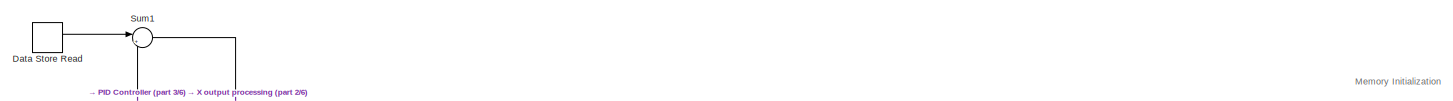
[diagram: root canvas - part 1/6, top center region]
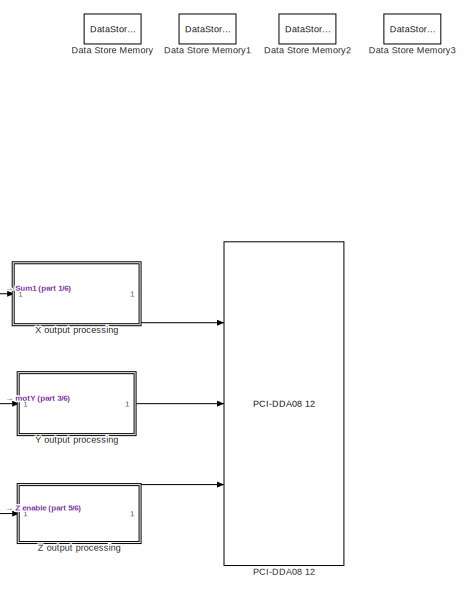
[diagram: root canvas - part 2/6, top right region]
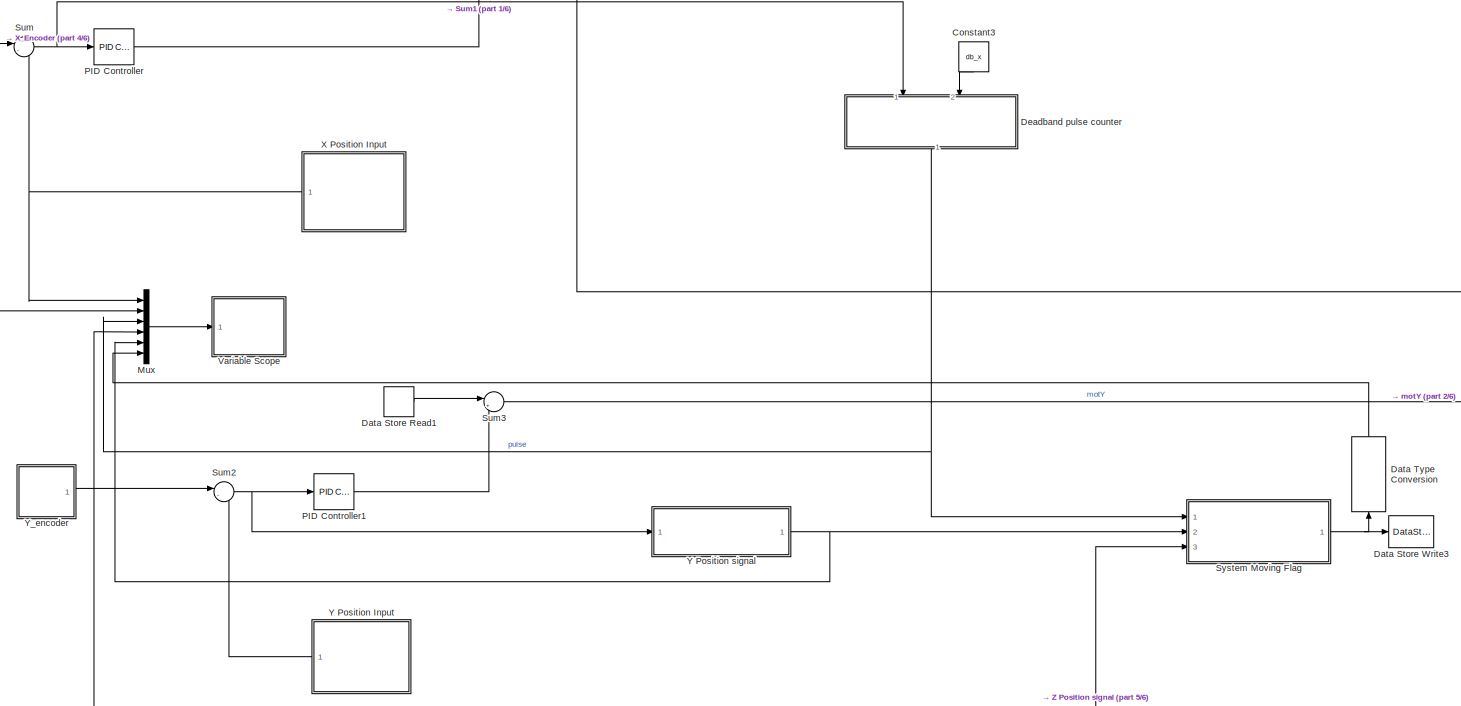
[diagram: root canvas - part 3/6, central region]
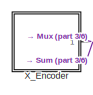
[diagram: root canvas - part 4/6, top left region]
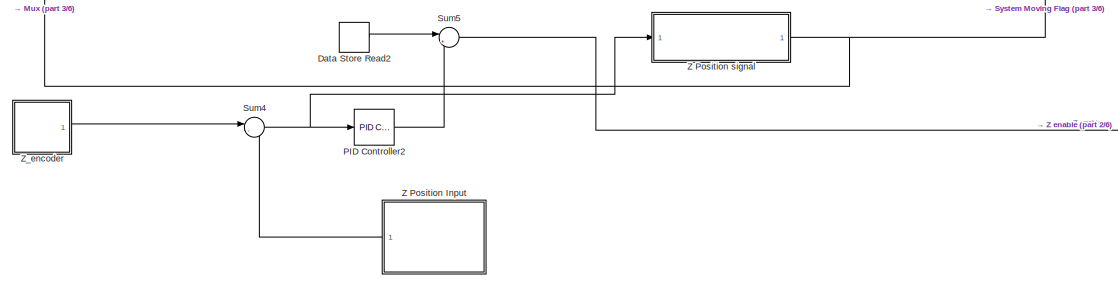
[diagram: root canvas - part 5/6, bottom center region]
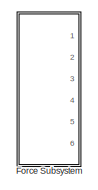
[diagram: root canvas - part 6/6, bottom center region]
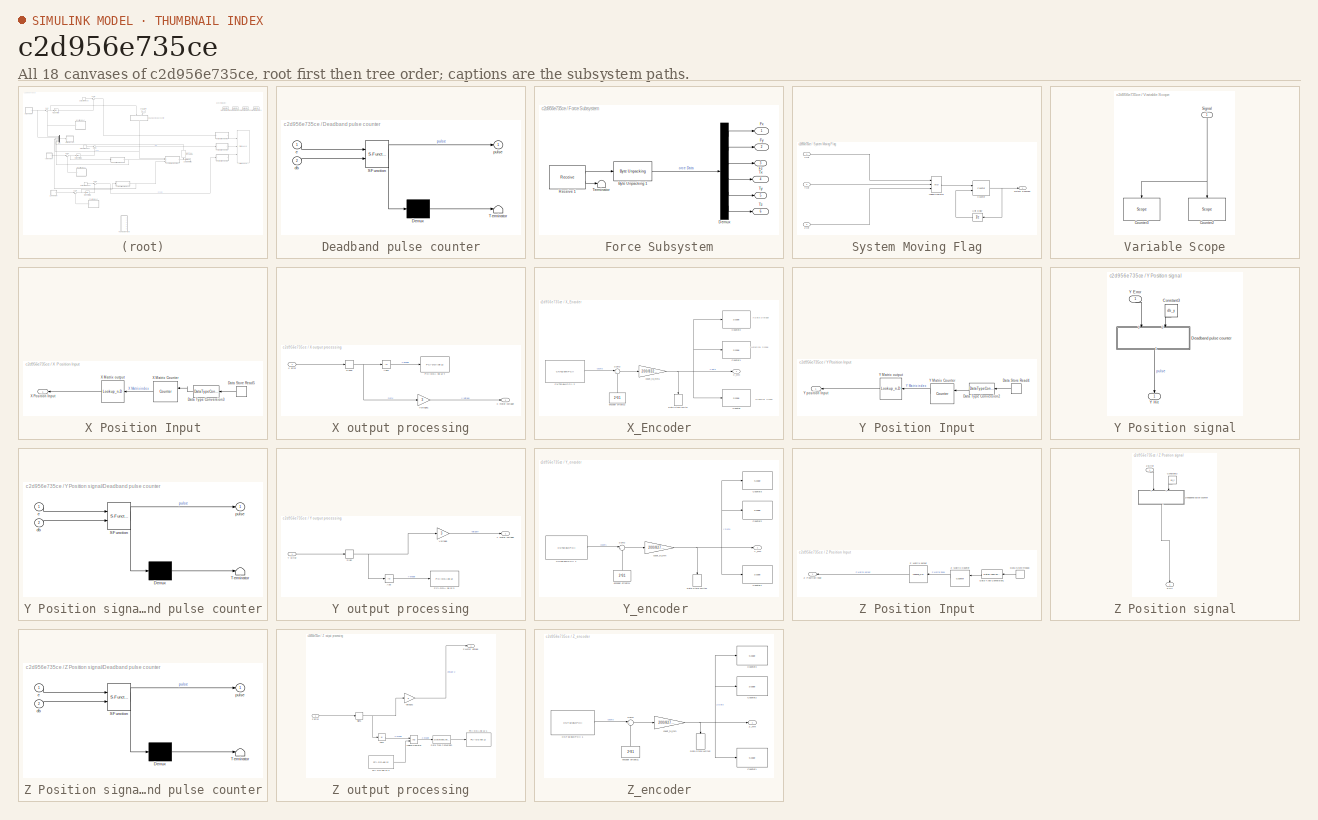
[diagram: thumbnail index - all 18 canvases of the model, root first then tree order]
MODEL slx_c2d956e735ce
KIND model
CONFIG AbsTol = auto
CONFIG FixedStep = ts
CONFIG MaxStep = auto
CONFIG MinStep = auto
CONFIG RelTol = 1e-3
CONFIG SampleTimeConstraint = Unconstrained
CONFIG Solver = ode4
CONFIG SolverMode = Auto
CONFIG SolverName = ode4
CONFIG StartTime = 0.0
CONFIG StopTime = inf
BLOCK [Constant] Constant3
  SampleTime = ts
  Value = db_x
BLOCK [DataStoreMemory] Data Store Memory
  DataStoreName = Xmem
  ReadBeforeWriteMsg = warning
  ShowAdditionalParam = off
  WriteAfterReadMsg = warning
  WriteAfterWriteMsg = warning
BLOCK [DataStoreMemory] Data Store Memory1
  DataStoreName = Ymem
  ReadBeforeWriteMsg = warning
  ShowAdditionalParam = off
  WriteAfterReadMsg = warning
  WriteAfterWriteMsg = warning
BLOCK [DataStoreMemory] Data Store Memory2
  DataStoreName = Zmem
  ReadBeforeWriteMsg = warning
  ShowAdditionalParam = off
  WriteAfterReadMsg = warning
  WriteAfterWriteMsg = warning
BLOCK [DataStoreMemory] Data Store Memory3
  DataStoreName = RFlag
  ReadBeforeWriteMsg = warning
  ShowAdditionalParam = off
  WriteAfterReadMsg = warning
  WriteAfterWriteMsg = warning
BLOCK [DataStoreRead] Data Store Read
  DataStoreName = Xmem
  Ports = [0, 1]
BLOCK [DataStoreRead] Data Store Read1
  DataStoreName = Ymem
  Ports = [0, 1]
BLOCK [DataStoreRead] Data Store Read2
  DataStoreName = Zmem
  Ports = [0, 1]
BLOCK [DataStoreWrite] Data Store Write3
  DataStoreName = RFlag
  Ports = [1]
BLOCK [DataTypeConversion] Data Type Conversion
  RndMeth = Floor
  SaturateOnIntegerOverflow = off
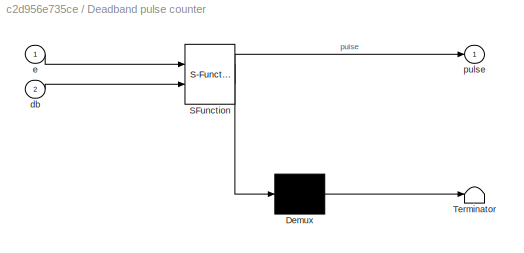
BLOCK [SubSystem] Deadband pulse counter
  ErrorFcn = Stateflow.Translate.translate
  PermitHierarchicalResolution = ExplicitOnly
  Ports = [2, 1]
  RequestExecContextInheritance = off
  SFBlockType = MATLAB Function
  TreatAsAtomicUnit = on
  Variant = off
BLOCK [Demux] Deadband pulse counter/ Demux 
  Outputs = 1
  Ports = [1, 1]
BLOCK [S-Function] Deadband pulse counter/ SFunction 
  EnableBusSupport = on
  FunctionName = sf_sfun
  PortCounts = [2 2]
  Ports = [2, 2]
  SFunctionDeploymentMode = off
  Tag = Stateflow S-Function Pos_PID 3
BLOCK [Terminator] Deadband pulse counter/ Terminator 
BLOCK [Inport] Deadband pulse counter/db
  IconDisplay = Port number
  Port = 2
BLOCK [Inport] Deadband pulse counter/e
  IconDisplay = Port number
BLOCK [Outport] Deadband pulse counter/pulse
  IconDisplay = Port number
BLOCK [SubSystem] Force Subsystem
  Ports = [0, 6]
  RequestExecContextInheritance = off
  Variant = off
BLOCK [Reference] Force Subsystem/Byte Unpacking 1  REF=xpcutilitieslib/Byte Unpacking 
  Ports = [1, 1]
  SourceBlock = xpcutilitieslib/Byte Unpacking
  SourceType = xpcbytepacking
BLOCK [Demux] Force Subsystem/Demux
  DisplayOption = bar
  Outputs = 6
  Ports = [1, 6]
BLOCK [Outport] Force Subsystem/Fx
  IconDisplay = Port number
BLOCK [Outport] Force Subsystem/Fy
  IconDisplay = Port number
  Port = 2
BLOCK [Outport] Force Subsystem/Fz
  IconDisplay = Port number
  Port = 3
BLOCK [Reference] Force Subsystem/Receive 1  REF=xpcrtudplib/Legacy UDP/Receive 
  Ports = [0, 2]
  SourceBlock = xpcrtudplib/Legacy UDP/Receive
  SourceType = xpcudpbytereceive
BLOCK [Terminator] Force Subsystem/Terminator
BLOCK [Outport] Force Subsystem/Tx
  IconDisplay = Port number
  Port = 4
BLOCK [Outport] Force Subsystem/Ty
  IconDisplay = Port number
  Port = 5
BLOCK [Outport] Force Subsystem/Tz
  IconDisplay = Port number
  Port = 6
BLOCK [Mux] Mux
  DisplayOption = bar
  Inputs = 6
  Ports = [6, 1]
BLOCK [Reference] PCI-DDA08 12   REF=xpcmeasurementcomputinglib/D//A/PCI-DDA08 12 
  Ports = [3]
  SourceBlock = xpcmeasurementcomputinglib/D//A/PCI-DDA08 12
  SourceType = dacbpcidda0812
BLOCK [Reference] PID Controller  REF=simulink/Continuous/PID Controller
  Ports = [1, 1]
  SourceBlock = simulink/Continuous/PID Controller
  SourceType = PID 1dof
BLOCK [Reference] PID Controller1  REF=simulink/Continuous/PID Controller
  Ports = [1, 1]
  SourceBlock = simulink/Continuous/PID Controller
  SourceType = PID 1dof
BLOCK [Reference] PID Controller2  REF=simulink/Continuous/PID Controller
  Ports = [1, 1]
  SourceBlock = simulink/Continuous/PID Controller
  SourceType = PID 1dof
BLOCK [Sum] Sum
  IconShape = round
  InputSameDT = off
  Inputs = |-+
  OutDataTypeStr = Inherit: Inherit via internal rule
  Ports = [2, 1]
  SaturateOnIntegerOverflow = off
BLOCK [Sum] Sum1
  IconShape = round
  InputSameDT = off
  Inputs = |+-
  OutDataTypeStr = Inherit: Inherit via internal rule
  Ports = [2, 1]
  SaturateOnIntegerOverflow = off
BLOCK [Sum] Sum2
  IconShape = round
  InputSameDT = off
  Inputs = |-+
  OutDataTypeStr = Inherit: Inherit via internal rule
  Ports = [2, 1]
  SaturateOnIntegerOverflow = off
BLOCK [Sum] Sum3
  IconShape = round
  InputSameDT = off
  Inputs = |+-
  OutDataTypeStr = Inherit: Inherit via internal rule
  Ports = [2, 1]
  SaturateOnIntegerOverflow = off
BLOCK [Sum] Sum4
  IconShape = round
  InputSameDT = off
  Inputs = |-+
  OutDataTypeStr = Inherit: Inherit via internal rule
  Ports = [2, 1]
  SaturateOnIntegerOverflow = off
BLOCK [Sum] Sum5
  IconShape = round
  InputSameDT = off
  Inputs = |+-
  OutDataTypeStr = Inherit: Inherit via internal rule
  Ports = [2, 1]
  SaturateOnIntegerOverflow = off
BLOCK [SubSystem] System Moving Flag
  Ports = [3, 1]
  RequestExecContextInheritance = off
  Variant = off
BLOCK [Reference] System Moving Flag/Counter  REF=dspswit3/Counter
  Ports = [2, 1]
  SourceBlock = dspswit3/Counter
  SourceType = Counter
BLOCK [Logic] System Moving Flag/Logical Operator
  AllPortsSameDT = off
  Inputs = 3
  OutDataTypeStr = boolean
  Ports = [3, 1]
BLOCK [Outport] System Moving Flag/System Reached
  IconDisplay = Port number
BLOCK [UnitDelay] System Moving Flag/Unit Delay
  InputProcessing = Elements as channels (sample based)
  SampleTime = ts
BLOCK [Inport] System Moving Flag/X Hit 
  IconDisplay = Port number
BLOCK [Inport] System Moving Flag/Y Hit
  IconDisplay = Port number
  Port = 2
BLOCK [Inport] System Moving Flag/Z Hit
  IconDisplay = Port number
  Port = 3
BLOCK [SubSystem] Variable Scope
  Ports = [1]
  RequestExecContextInheritance = off
  Variant = off
BLOCK [Reference] Variable Scope/Counter2  REF=slrtlib/Displays and
Logging/Scope 
  Ports = [1]
  SourceBlock = slrtlib/Displays and\nLogging/Scope
  SourceType = xpcscopeblock
BLOCK [Reference] Variable Scope/Counter3  REF=slrtlib/Displays and
Logging/Scope 
  Ports = [1]
  SourceBlock = slrtlib/Displays and\nLogging/Scope
  SourceType = xpcscopeblock
BLOCK [Inport] Variable Scope/Signal
  IconDisplay = Port number
BLOCK [SubSystem] X Position Input
  Ports = [0, 1]
  RequestExecContextInheritance = off
  Variant = off
BLOCK [DataStoreRead] X Position Input/Data Store Read5
  DataStoreName = RFlag
  Ports = [0, 1]
BLOCK [DataTypeConversion] X Position Input/Data Type Conversion3
  RndMeth = Floor
  SaturateOnIntegerOverflow = off
BLOCK [Reference] X Position Input/X Matrix Counter  REF=dspswit3/Counter
  Ports = [2, 1]
  SourceBlock = dspswit3/Counter
  SourceType = Counter
BLOCK [Lookup_n-D] X Position Input/X Matrix output
  BreakpointsForDimension1 = [0:20]
  BreakpointsForDimension1FirstPoint = 0
  BreakpointsSpecification = Even spacing
  ExtrapMethod = Clip
  InternalRulePriority = Speed
  InterpMethod = Flat
  NumberOfTableDimensions = 1
  Ports = [1, 1]
  RndMeth = Simplest
  Table = xpos
  UseLastTableValue = on
BLOCK [Outport] X Position Input/X Position Input
  IconDisplay = Port number
BLOCK [SubSystem] X output processing
  Ports = [1, 1]
  RequestExecContextInheritance = off
  Variant = off
BLOCK [Abs] X output processing/Abs1
  SaturateOnIntegerOverflow = off
BLOCK [Reference] X output processing/PCI-DDA 08 12 4  REF=xpcmeasurementcomputinglib/Digital
Output/PCI-DDA08 12 
  Ports = [1]
  SourceBlock = xpcmeasurementcomputinglib/Digital\nOutput/PCI-DDA08 12
  SourceType = docbpcidda0812
BLOCK [Signum] X output processing/Sign2
BLOCK [Gain] X output processing/Voltage1
  Gain = 3
  OutDataTypeStr = Inherit: Inherit via internal rule
  ParamDataTypeStr = Inherit: Inherit via internal rule
  SaturateOnIntegerOverflow = off
BLOCK [Inport] X output processing/X error
  IconDisplay = Port number
BLOCK [Outport] X output processing/X motor voltage
  IconDisplay = Port number
BLOCK [SubSystem] X_Encoder
  Ports = [0, 1]
  RequestExecContextInheritance = off
  Variant = off
BLOCK [Reference] X_Encoder/CNT32-8M(PCI) 2  REF=xpcconteclib/Incremental
Encoder/CNT32-8M(PCI) 
  Ports = [0, 1]
  SourceBlock = xpcconteclib/Incremental\nEncoder/CNT32-8M(PCI)
  SourceType = encconteccnt328mpci
BLOCK [Reference] X_Encoder/Counter  REF=slrtlib/Displays and
Logging/Scope 
  Ports = [1]
  SourceBlock = slrtlib/Displays and\nLogging/Scope
  SourceType = xpcscopeblock
BLOCK [Reference] X_Encoder/Counter1  REF=slrtlib/Displays and
Logging/Scope 
  Commented = on
  Ports = [1]
  SourceBlock = slrtlib/Displays and\nLogging/Scope
  SourceType = xpcscopeblock
BLOCK [Reference] X_Encoder/Counter2  REF=slrtlib/Displays and
Logging/Scope 
  Ports = [1]
  SourceBlock = slrtlib/Displays and\nLogging/Scope
  SourceType = xpcscopeblock
BLOCK [DataStoreWrite] X_Encoder/Data Store Write
  DataStoreName = Xmem
  Ports = [1]
BLOCK [Sum] X_Encoder/Sum3
  IconShape = round
  InputSameDT = off
  Inputs = |+-
  OutDataTypeStr = Inherit: Inherit via internal rule
  Ports = [2, 1]
  SaturateOnIntegerOverflow = off
BLOCK [Outport] X_Encoder/X_mm 
  IconDisplay = Port number
BLOCK [Gain] X_Encoder/count_to_mm1
  Gain = 200/83289
  OutDataTypeStr = Inherit: Inherit via internal rule
  ParamDataTypeStr = Inherit: Inherit via internal rule
  SaturateOnIntegerOverflow = off
BLOCK [Constant] X_Encoder/encoder offsets2
  Value = 2^31
BLOCK [SubSystem] Y Position Input
  Ports = [0, 1]
  RequestExecContextInheritance = off
  Variant = off
BLOCK [DataStoreRead] Y Position Input/Data Store Read4
  DataStoreName = RFlag
  Ports = [0, 1]
BLOCK [DataTypeConversion] Y Position Input/Data Type Conversion2
  RndMeth = Floor
  SaturateOnIntegerOverflow = off
BLOCK [Reference] Y Position Input/Y Matrix Counter  REF=dspswit3/Counter
  Ports = [2, 1]
  SourceBlock = dspswit3/Counter
  SourceType = Counter
BLOCK [Lookup_n-D] Y Position Input/Y Matrix output
  BreakpointsForDimension1 = [0:20]
  BreakpointsForDimension1FirstPoint = 0
  BreakpointsSpecification = Even spacing
  ExtrapMethod = Clip
  InternalRulePriority = Speed
  InterpMethod = Flat
  NumberOfTableDimensions = 1
  Ports = [1, 1]
  RndMeth = Simplest
  Table = ypos
  UseLastTableValue = on
BLOCK [Outport] Y Position Input/Y position Input
  IconDisplay = Port number
BLOCK [SubSystem] Y Position signal
  Ports = [1, 1]
  RequestExecContextInheritance = off
  Variant = off
BLOCK [Constant] Y Position signal/Constant3
  SampleTime = ts
  Value = db_y
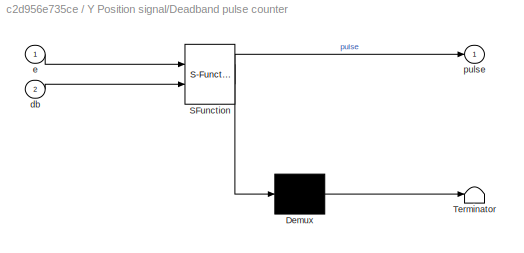
BLOCK [SubSystem] Y Position signal/Deadband pulse counter
  ErrorFcn = Stateflow.Translate.translate
  PermitHierarchicalResolution = ExplicitOnly
  Ports = [2, 1]
  RequestExecContextInheritance = off
  SFBlockType = MATLAB Function
  TreatAsAtomicUnit = on
  Variant = off
BLOCK [Demux] Y Position signal/Deadband pulse counter/ Demux 
  Outputs = 1
  Ports = [1, 1]
BLOCK [S-Function] Y Position signal/Deadband pulse counter/ SFunction 
  EnableBusSupport = on
  FunctionName = sf_sfun
  PortCounts = [2 2]
  Ports = [2, 2]
  SFunctionDeploymentMode = off
  Tag = Stateflow S-Function Pos_PID 1
BLOCK [Terminator] Y Position signal/Deadband pulse counter/ Terminator 
BLOCK [Inport] Y Position signal/Deadband pulse counter/db
  IconDisplay = Port number
  Port = 2
BLOCK [Inport] Y Position signal/Deadband pulse counter/e
  IconDisplay = Port number
BLOCK [Outport] Y Position signal/Deadband pulse counter/pulse
  IconDisplay = Port number
BLOCK [Inport] Y Position signal/Y Error
  IconDisplay = Port number
BLOCK [Outport] Y Position signal/Y Hit
  IconDisplay = Port number
BLOCK [SubSystem] Y output processing
  Ports = [1, 1]
  RequestExecContextInheritance = off
  Variant = off
BLOCK [Abs] Y output processing/Abs
  SaturateOnIntegerOverflow = off
BLOCK [Reference] Y output processing/PCI-DDA 08 12 3  REF=xpcmeasurementcomputinglib/Digital
Output/PCI-DDA08 12 
  Ports = [1]
  SourceBlock = xpcmeasurementcomputinglib/Digital\nOutput/PCI-DDA08 12
  SourceType = docbpcidda0812
BLOCK [Signum] Y output processing/Sign
BLOCK [Gain] Y output processing/Voltage
  Gain = 3
  OutDataTypeStr = Inherit: Inherit via internal rule
  ParamDataTypeStr = Inherit: Inherit via internal rule
  SaturateOnIntegerOverflow = off
BLOCK [Inport] Y output processing/Y Error
  IconDisplay = Port number
BLOCK [Outport] Y output processing/Y motor voltage
  IconDisplay = Port number
BLOCK [SubSystem] Y_encoder 
  Ports = [0, 1]
  RequestExecContextInheritance = off
  Variant = off
BLOCK [Reference] Y_encoder /CNT32-8M(PCI) 1  REF=xpcconteclib/Incremental
Encoder/CNT32-8M(PCI) 
  Ports = [0, 1]
  SourceBlock = xpcconteclib/Incremental\nEncoder/CNT32-8M(PCI)
  SourceType = encconteccnt328mpci
BLOCK [Reference] Y_encoder /Counter1  REF=slrtlib/Displays and
Logging/Scope 
  Ports = [1]
  SourceBlock = slrtlib/Displays and\nLogging/Scope
  SourceType = xpcscopeblock
BLOCK [Reference] Y_encoder /Counter2  REF=slrtlib/Displays and
Logging/Scope 
  Commented = on
  Ports = [1]
  SourceBlock = slrtlib/Displays and\nLogging/Scope
  SourceType = xpcscopeblock
BLOCK [Reference] Y_encoder /Counter3  REF=slrtlib/Displays and
Logging/Scope 
  Ports = [1]
  SourceBlock = slrtlib/Displays and\nLogging/Scope
  SourceType = xpcscopeblock
BLOCK [DataStoreWrite] Y_encoder /Data Store Write1
  DataStoreName = Ymem
  Ports = [1]
BLOCK [Sum] Y_encoder /Sum2
  IconShape = round
  InputSameDT = off
  Inputs = |+-
  OutDataTypeStr = Inherit: Inherit via internal rule
  Ports = [2, 1]
  SaturateOnIntegerOverflow = off
BLOCK [Outport] Y_encoder /Y_mm
  IconDisplay = Port number
BLOCK [Gain] Y_encoder /count_to_mm
  Gain = 200/82720
  OutDataTypeStr = Inherit: Inherit via internal rule
  ParamDataTypeStr = Inherit: Inherit via internal rule
  SaturateOnIntegerOverflow = off
BLOCK [Constant] Y_encoder /encoder offsets1
  Value = 2^31
BLOCK [SubSystem] Z Position Input
  Ports = [0, 1]
  RequestExecContextInheritance = off
  Variant = off
BLOCK [DataStoreRead] Z Position Input/Data Store Read3
  DataStoreName = RFlag
  Ports = [0, 1]
BLOCK [DataTypeConversion] Z Position Input/Data Type Conversion1
  RndMeth = Floor
  SaturateOnIntegerOverflow = off
BLOCK [Reference] Z Position Input/Z Matrix Counter  REF=dspswit3/Counter
  Ports = [2, 1]
  SourceBlock = dspswit3/Counter
  SourceType = Counter
BLOCK [Lookup_n-D] Z Position Input/Z Matrix output
  BreakpointsForDimension1 = [0:20]
  BreakpointsForDimension1FirstPoint = 0
  BreakpointsSpecification = Even spacing
  ExtrapMethod = Clip
  InternalRulePriority = Speed
  InterpMethod = Flat
  NumberOfTableDimensions = 1
  Ports = [1, 1]
  RndMeth = Simplest
  Table = zpos
  UseLastTableValue = on
BLOCK [Outport] Z Position Input/Z Position input
  IconDisplay = Port number
BLOCK [SubSystem] Z Position signal
  Ports = [1, 1]
  RequestExecContextInheritance = off
  Variant = off
BLOCK [Constant] Z Position signal/Constant3
  SampleTime = ts
  Value = db_z
BLOCK [SubSystem] Z Position signal/Deadband pulse counter
  ErrorFcn = Stateflow.Translate.translate
  PermitHierarchicalResolution = ExplicitOnly
  Ports = [2, 1]
  RequestExecContextInheritance = off
  SFBlockType = MATLAB Function
  TreatAsAtomicUnit = on
  Variant = off
BLOCK [Demux] Z Position signal/Deadband pulse counter/ Demux 
  Outputs = 1
  Ports = [1, 1]
BLOCK [S-Function] Z Position signal/Deadband pulse counter/ SFunction 
  EnableBusSupport = on
  FunctionName = sf_sfun
  PortCounts = [2 2]
  Ports = [2, 2]
  SFunctionDeploymentMode = off
  Tag = Stateflow S-Function Pos_PID 2
BLOCK [Terminator] Z Position signal/Deadband pulse counter/ Terminator 
BLOCK [Inport] Z Position signal/Deadband pulse counter/db
  IconDisplay = Port number
  Port = 2
BLOCK [Inport] Z Position signal/Deadband pulse counter/e
  IconDisplay = Port number
BLOCK [Outport] Z Position signal/Deadband pulse counter/pulse
  IconDisplay = Port number
BLOCK [Inport] Z Position signal/Z Error
  IconDisplay = Port number
BLOCK [Outport] Z Position signal/Z Hit
  IconDisplay = Port number
BLOCK [SubSystem] Z output processing
  Ports = [1, 1]
  RequestExecContextInheritance = off
  Variant = off
BLOCK [Abs] Z output processing/Abs2
  SaturateOnIntegerOverflow = off
BLOCK [DataTypeConversion] Z output processing/Data Type Conversion
  OutDataTypeStr = double
  RndMeth = Floor
  SaturateOnIntegerOverflow = off
BLOCK [Logic] Z output processing/Logical Operator
  AllPortsSameDT = off
  OutDataTypeStr = boolean
  Ports = [2, 1]
BLOCK [Reference] Z output processing/PCI-DDA 08 12 1  REF=xpcmeasurementcomputinglib/Digital
Output/PCI-DDA08 12 
  Ports = [1]
  SourceBlock = xpcmeasurementcomputinglib/Digital\nOutput/PCI-DDA08 12
  SourceType = docbpcidda0812
BLOCK [Reference] Z output processing/PCI-DDA08 12 3  REF=xpcmeasurementcomputinglib/Digital
Input/PCI-DDA08 12 
  Ports = [0, 1]
  SourceBlock = xpcmeasurementcomputinglib/Digital\nInput/PCI-DDA08 12
  SourceType = dicbpcidda0812
BLOCK [Signum] Z output processing/Sign1
BLOCK [Gain] Z output processing/Voltage2
  Gain = 3
  OutDataTypeStr = Inherit: Inherit via internal rule
  ParamDataTypeStr = Inherit: Inherit via internal rule
  SaturateOnIntegerOverflow = off
BLOCK [Inport] Z output processing/Z Error
  IconDisplay = Port number
BLOCK [Outport] Z output processing/Z Motor Voltage
  IconDisplay = Port number
BLOCK [SubSystem] Z_encoder
  Ports = [0, 1]
  RequestExecContextInheritance = off
  Variant = off
BLOCK [Reference] Z_encoder/CNT32-8M(PCI) 1  REF=xpcconteclib/Incremental
Encoder/CNT32-8M(PCI) 
  Ports = [0, 1]
  SourceBlock = xpcconteclib/Incremental\nEncoder/CNT32-8M(PCI)
  SourceType = encconteccnt328mpci
BLOCK [Reference] Z_encoder/Counter1  REF=slrtlib/Displays and
Logging/Scope 
  Ports = [1]
  SourceBlock = slrtlib/Displays and\nLogging/Scope
  SourceType = xpcscopeblock
BLOCK [Reference] Z_encoder/Counter2  REF=slrtlib/Displays and
Logging/Scope 
  Commented = on
  Ports = [1]
  SourceBlock = slrtlib/Displays and\nLogging/Scope
  SourceType = xpcscopeblock
BLOCK [Reference] Z_encoder/Counter3  REF=slrtlib/Displays and
Logging/Scope 
  Ports = [1]
  SourceBlock = slrtlib/Displays and\nLogging/Scope
  SourceType = xpcscopeblock
BLOCK [DataStoreWrite] Z_encoder/Data Store Write2
  DataStoreName = Zmem
  Ports = [1]
BLOCK [Sum] Z_encoder/Sum2
  IconShape = round
  InputSameDT = off
  Inputs = |+-
  OutDataTypeStr = Inherit: Inherit via internal rule
  Ports = [2, 1]
  SaturateOnIntegerOverflow = off
BLOCK [Outport] Z_encoder/Z_mm
  IconDisplay = Port number
BLOCK [Gain] Z_encoder/count_to_mm
  Gain = 200/82720
  OutDataTypeStr = Inherit: Inherit via internal rule
  ParamDataTypeStr = Inherit: Inherit via internal rule
  SaturateOnIntegerOverflow = off
BLOCK [Constant] Z_encoder/encoder offsets1
  Value = 2^31
ANNOTATION (root): Memory Initialization
ANNOTATION X_Encoder: Graphical Scope
ANNOTATION X_Encoder: Numerical Scope
ANNOTATION X_Encoder: XData Storage
LINE Constant3:1 -> Deadband pulse counter:2
LINE Data Store Read1:1 -> Sum3:1
LINE Data Store Read2:1 -> Sum5:1
LINE Data Store Read:1 -> Sum1:1
LINE Data Type Conversion:1 -> Mux:6
NET Deadband pulse counter:1 -> Mux:3, System Moving Flag:1
LINE Force Subsystem/Byte Unpacking 1:1 -> Force Subsystem/Demux:1
LINE Force Subsystem/Demux:1 -> Force Subsystem/Fx:1
LINE Force Subsystem/Demux:2 -> Force Subsystem/Fy:1
LINE Force Subsystem/Demux:3 -> Force Subsystem/Fz:1
LINE Force Subsystem/Demux:4 -> Force Subsystem/Tx:1
LINE Force Subsystem/Demux:5 -> Force Subsystem/Ty:1
LINE Force Subsystem/Demux:6 -> Force Subsystem/Tz:1
LINE Force Subsystem/Receive 1:1 -> Force Subsystem/Byte Unpacking 1:1
LINE Force Subsystem/Receive 1:2 -> Force Subsystem/Terminator:1
LINE Mux:1 -> Variable Scope:1
LINE PID Controller1:1 -> Sum3:2
LINE PID Controller2:1 -> Sum5:2
LINE PID Controller:1 -> Sum1:2
LINE Sum1:1 -> X output processing:1
NET Sum2:1 -> PID Controller1:1, Y Position signal:1
LINE Sum3:1 -> Y output processing:1
NET Sum4:1 -> PID Controller2:1, Z Position signal:1
LINE Sum5:1 -> Z output processing:1
NET Sum:1 -> Deadband pulse counter:1, PID Controller:1
NET System Moving Flag/Counter:1 -> System Moving Flag/System Reached:1, System Moving Flag/Unit Delay:1
LINE System Moving Flag/Logical Operator:1 -> System Moving Flag/Counter:1
LINE System Moving Flag/Unit Delay:1 -> System Moving Flag/Counter:2
LINE System Moving Flag/X Hit :1 -> System Moving Flag/Logical Operator:1
LINE System Moving Flag/Y Hit:1 -> System Moving Flag/Logical Operator:2
LINE System Moving Flag/Z Hit:1 -> System Moving Flag/Logical Operator:3
NET System Moving Flag:1 -> Data Store Write3:1, Data Type Conversion:1
NET Variable Scope/Signal:1 -> Variable Scope/Counter2:1, Variable Scope/Counter3:1
LINE X Position Input/Data Store Read5:1 -> X Position Input/Data Type Conversion3:1
LINE X Position Input/Data Type Conversion3:1 -> X Position Input/X Matrix Counter:1
LINE X Position Input/X Matrix Counter:1 -> X Position Input/X Matrix output:1
LINE X Position Input/X Matrix output:1 -> X Position Input/X Position Input:1
NET X Position Input:1 -> Mux:1, Sum:2
LINE X output processing/Abs1:1 -> X output processing/PCI-DDA 08 12 4:1
NET X output processing/Sign2:1 -> X output processing/Abs1:1, X output processing/Voltage1:1
LINE X output processing/Voltage1:1 -> X output processing/X motor voltage:1
LINE X output processing/X error:1 -> X output processing/Sign2:1
LINE X output processing:1 -> PCI-DDA08 12 :1
LINE X_Encoder/CNT32-8M(PCI) 2:1 -> X_Encoder/Sum3:1
LINE X_Encoder/Sum3:1 -> X_Encoder/count_to_mm1:1
NET X_Encoder/count_to_mm1:1 -> X_Encoder/Counter1:1, X_Encoder/Counter2:1, X_Encoder/Counter:1, X_Encoder/Data Store Write:1, X_Encoder/X_mm :1
LINE X_Encoder/encoder offsets2:1 -> X_Encoder/Sum3:2
NET X_Encoder:1 -> Mux:2, Sum:1
LINE Y Position Input/Data Store Read4:1 -> Y Position Input/Data Type Conversion2:1
LINE Y Position Input/Data Type Conversion2:1 -> Y Position Input/Y Matrix Counter:1
LINE Y Position Input/Y Matrix Counter:1 -> Y Position Input/Y Matrix output:1
LINE Y Position Input/Y Matrix output:1 -> Y Position Input/Y position Input:1
LINE Y Position Input:1 -> Sum2:2
LINE Y Position signal/Constant3:1 -> Y Position signal/Deadband pulse counter:2
LINE Y Position signal/Deadband pulse counter:1 -> Y Position signal/Y Hit:1
LINE Y Position signal/Y Error:1 -> Y Position signal/Deadband pulse counter:1
NET Y Position signal:1 -> Mux:5, System Moving Flag:2
LINE Y output processing/Abs:1 -> Y output processing/PCI-DDA 08 12 3:1
NET Y output processing/Sign:1 -> Y output processing/Abs:1, Y output processing/Voltage:1
LINE Y output processing/Voltage:1 -> Y output processing/Y motor voltage:1
LINE Y output processing/Y Error:1 -> Y output processing/Sign:1
LINE Y output processing:1 -> PCI-DDA08 12 :2
LINE Y_encoder /CNT32-8M(PCI) 1:1 -> Y_encoder /Sum2:1
LINE Y_encoder /Sum2:1 -> Y_encoder /count_to_mm:1
NET Y_encoder /count_to_mm:1 -> Y_encoder /Counter1:1, Y_encoder /Counter2:1, Y_encoder /Counter3:1, Y_encoder /Data Store Write1:1, Y_encoder /Y_mm:1
LINE Y_encoder /encoder offsets1:1 -> Y_encoder /Sum2:2
LINE Y_encoder :1 -> Sum2:1
LINE Z Position Input/Data Store Read3:1 -> Z Position Input/Data Type Conversion1:1
LINE Z Position Input/Data Type Conversion1:1 -> Z Position Input/Z Matrix Counter:1
LINE Z Position Input/Z Matrix Counter:1 -> Z Position Input/Z Matrix output:1
LINE Z Position Input/Z Matrix output:1 -> Z Position Input/Z Position input:1
LINE Z Position Input:1 -> Sum4:2
LINE Z Position signal/Constant3:1 -> Z Position signal/Deadband pulse counter:2
LINE Z Position signal/Deadband pulse counter:1 -> Z Position signal/Z Hit:1
LINE Z Position signal/Z Error:1 -> Z Position signal/Deadband pulse counter:1
NET Z Position signal:1 -> Mux:4, System Moving Flag:3
LINE Z output processing/Abs2:1 -> Z output processing/Logical Operator:1
LINE Z output processing/Data Type Conversion:1 -> Z output processing/PCI-DDA 08 12 1:1
LINE Z output processing/Logical Operator:1 -> Z output processing/Data Type Conversion:1
LINE Z output processing/PCI-DDA08 12 3:1 -> Z output processing/Logical Operator:2
NET Z output processing/Sign1:1 -> Z output processing/Abs2:1, Z output processing/Voltage2:1
LINE Z output processing/Voltage2:1 -> Z output processing/Z Motor Voltage:1
LINE Z output processing/Z Error:1 -> Z output processing/Sign1:1
LINE Z output processing:1 -> PCI-DDA08 12 :3
LINE Z_encoder/CNT32-8M(PCI) 1:1 -> Z_encoder/Sum2:1
LINE Z_encoder/Sum2:1 -> Z_encoder/count_to_mm:1
NET Z_encoder/count_to_mm:1 -> Z_encoder/Counter1:1, Z_encoder/Counter2:1, Z_encoder/Counter3:1, Z_encoder/Data Store Write2:1, Z_encoder/Z_mm:1
LINE Z_encoder/encoder offsets1:1 -> Z_encoder/Sum2:2
LINE Z_encoder:1 -> Sum4:1
note: NET lines group one-source signal fan-out (src -> all destinations, sorted); 1:1 wires keep LINE
CHART Y Position signal/Deadband pulse counter states=1 transitions=1
  STATE_LABEL 'eML_blk_kernel()'
  STATE_LABEL 'SCRIPT:\nfunction pulse  = fcn(e,db)\n%#codegen\nif e>-db && e<db\n    pulse=1;\nelse\n    pulse=0;\nend\n\nend'
CHART Z Position signal/Deadband pulse counter states=1 transitions=1
  STATE_LABEL 'eML_blk_kernel()'
  STATE_LABEL 'SCRIPT:\nfunction pulse  = fcn(e,db)\n%#codegen\nif e>-db && e<db\n    pulse=1;\nelse\n    pulse=0;\nend\n\nend'
CHART Deadband pulse counter states=1 transitions=1
  STATE_LABEL 'eML_blk_kernel()'
  STATE_LABEL 'SCRIPT:\nfunction pulse  = fcn(e,db)\n%#codegen\nif e>-db && e<db\n    pulse=1;\nelse\n    pulse=0;\nend\n\nend'
